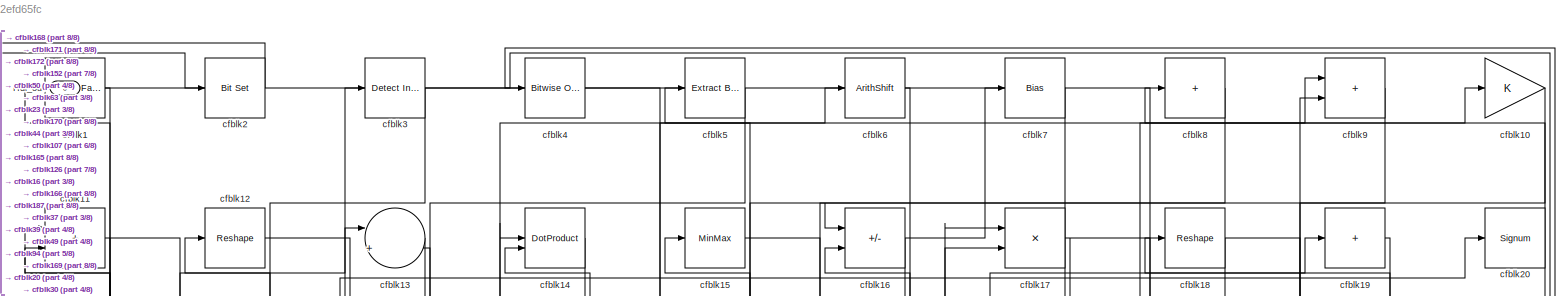
[diagram: root canvas - part 1/8, full width, top band]
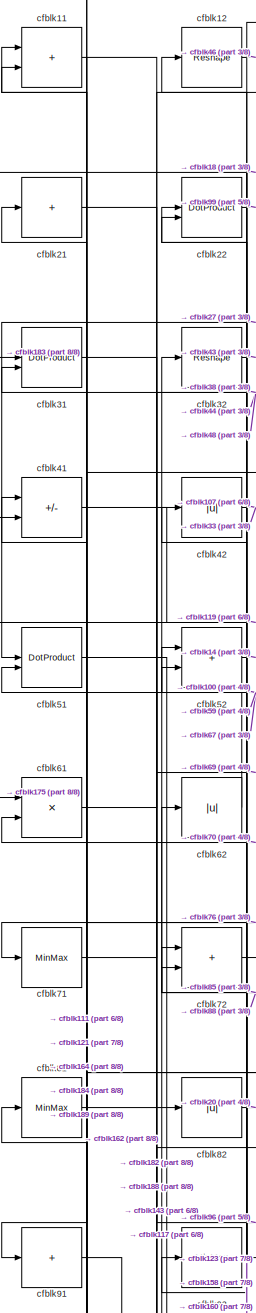
[diagram: root canvas - part 2/8, top left region]
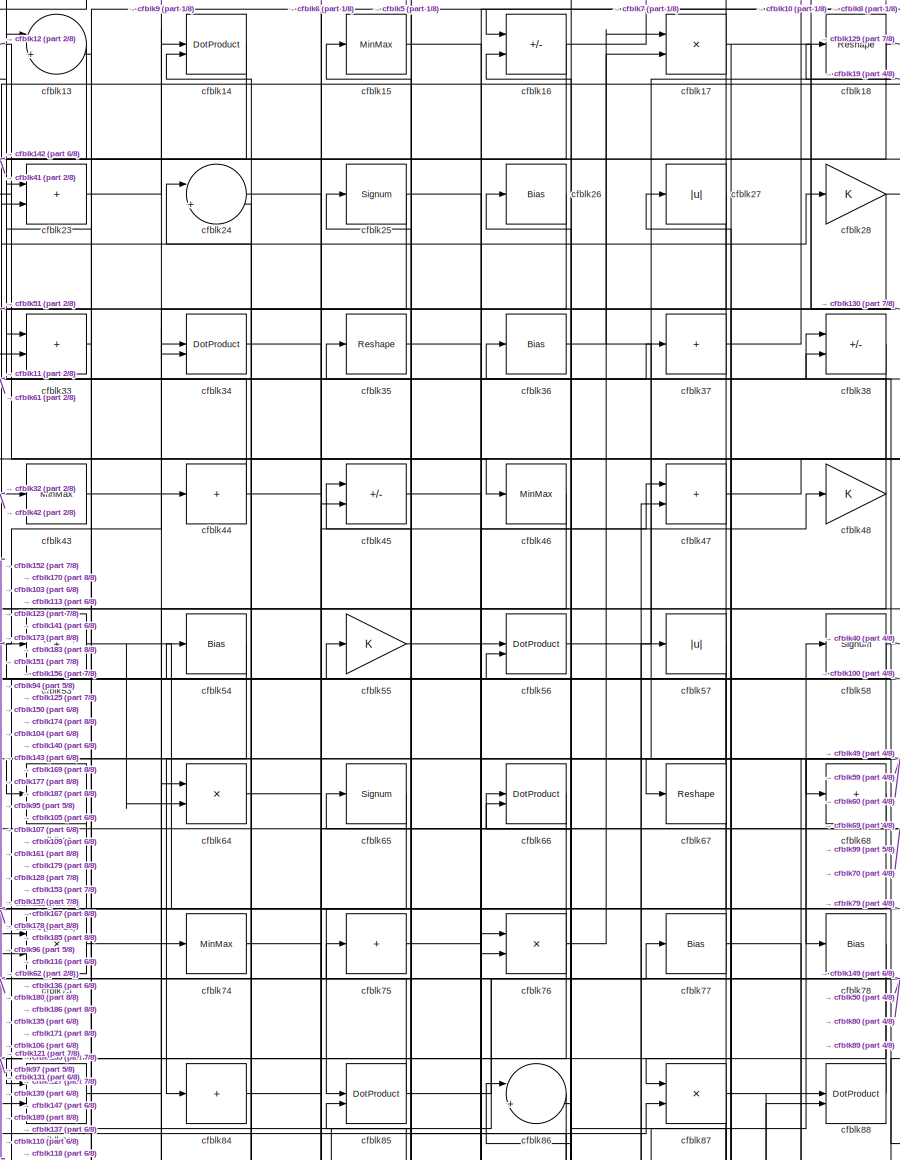
[diagram: root canvas - part 3/8, top center region]
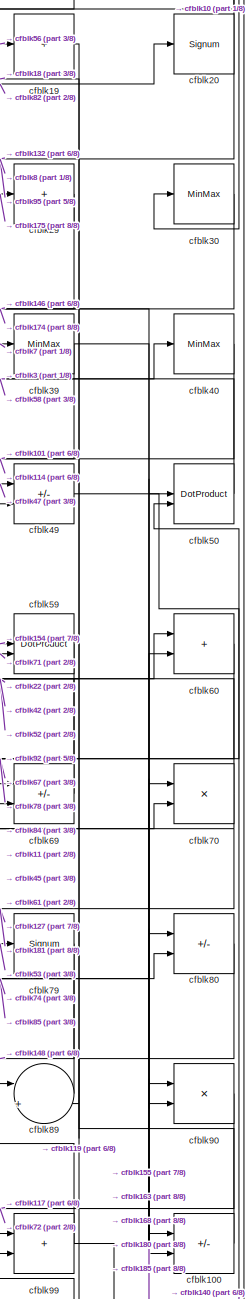
[diagram: root canvas - part 4/8, top right region]
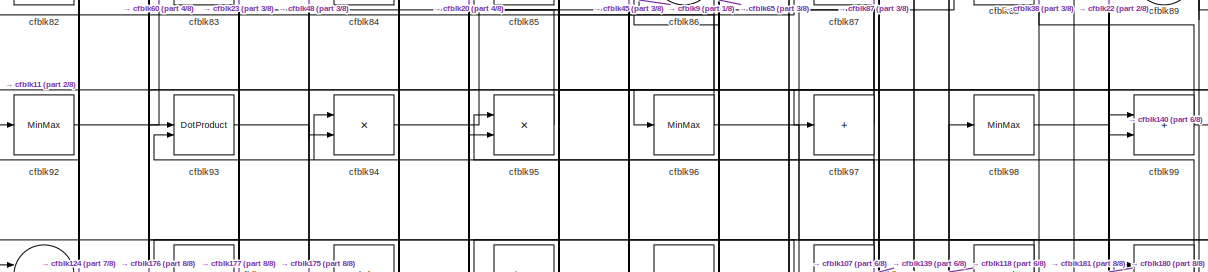
[diagram: root canvas - part 5/8, full width, middle band]
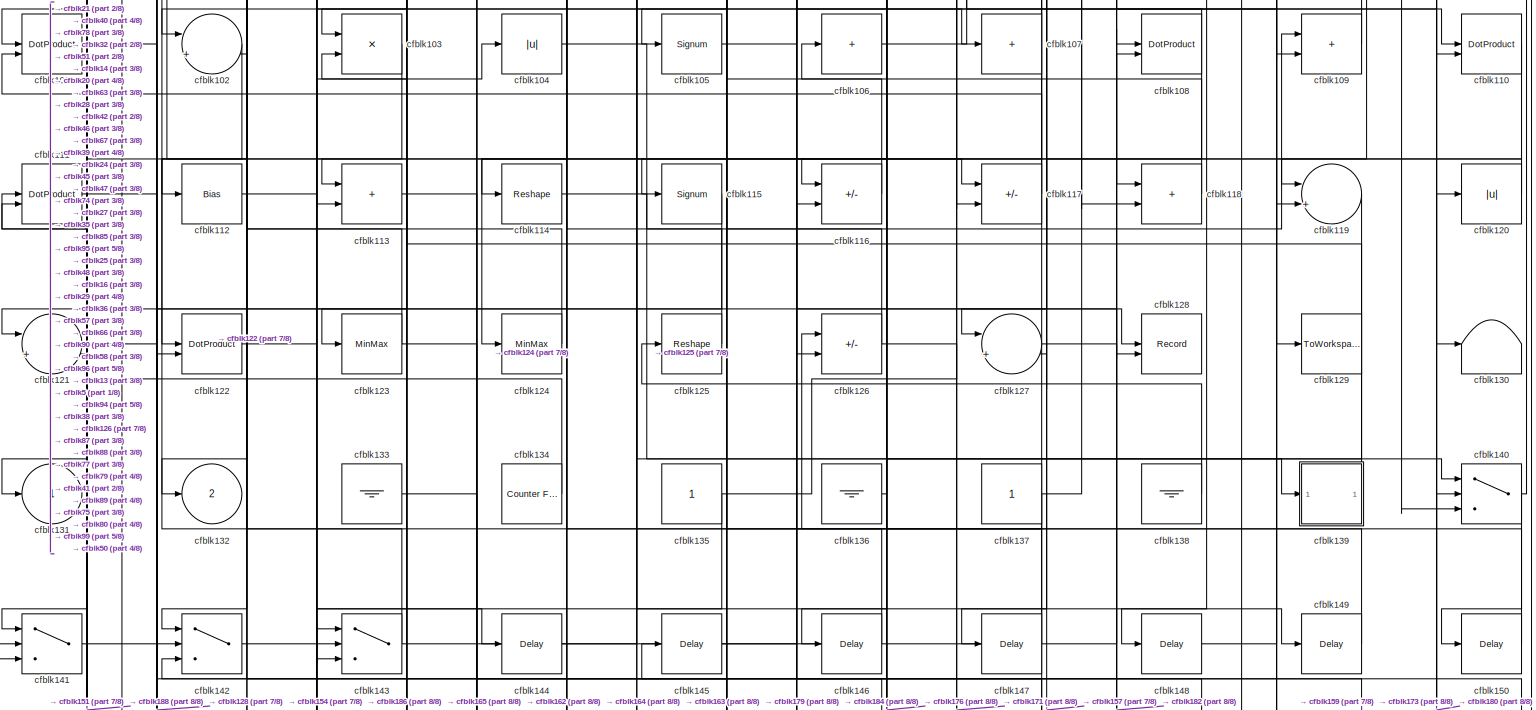
[diagram: root canvas - part 6/8, full width, middle band]
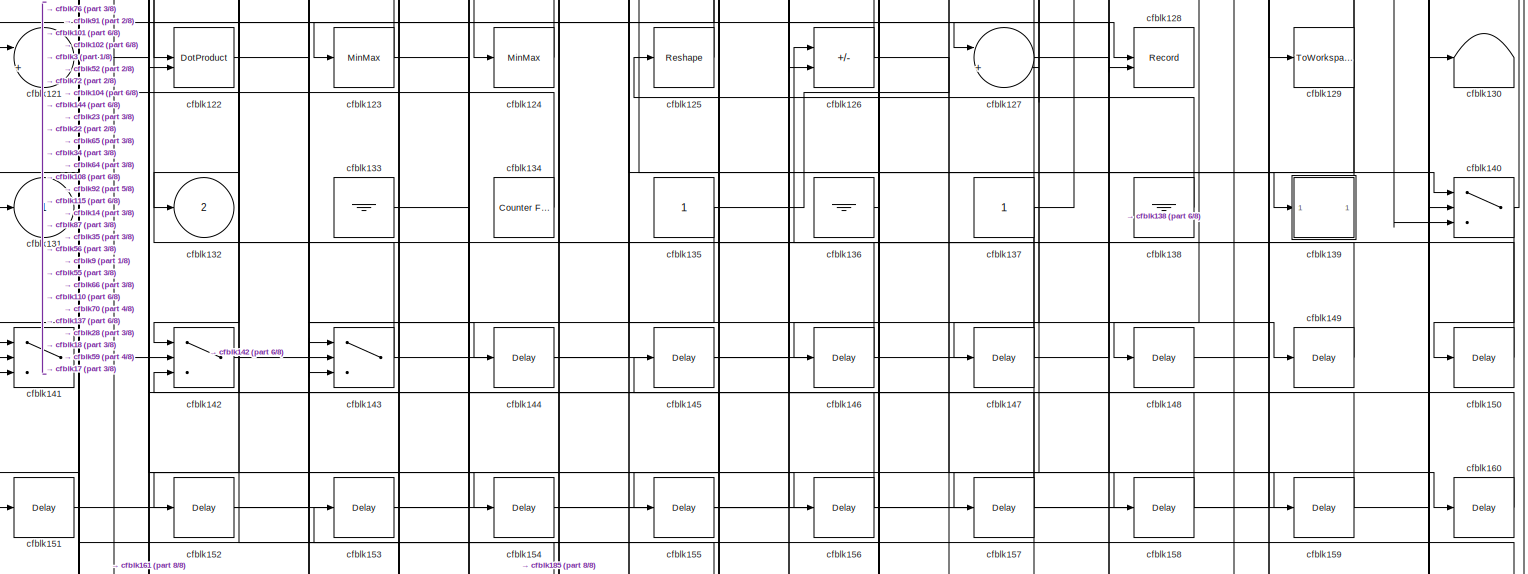
[diagram: root canvas - part 7/8, full width, bottom band]
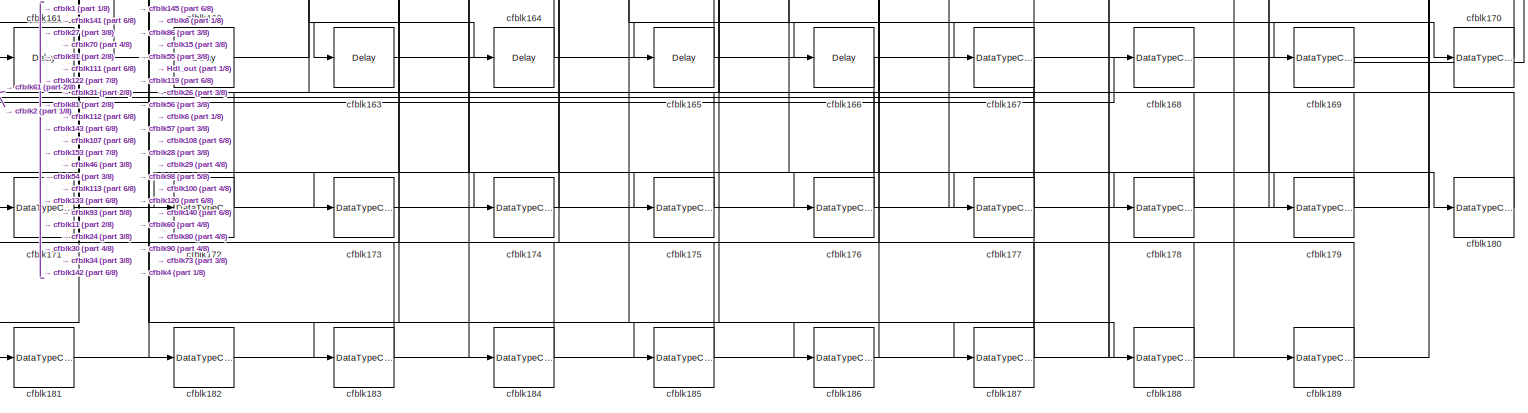
[diagram: root canvas - part 8/8, full width, bottom band]
MODEL slx_816c2efd65fc
KIND model
CONFIG AbsTol = auto
CONFIG EnableMultiTasking = off
CONFIG FixedStep = auto
CONFIG MaxStep = auto
CONFIG MinStep = auto
CONFIG RelTol = 1e-3
CONFIG SampleTimeConstraint = Unconstrained
CONFIG SolverName = VariableStepAuto
CONFIG StartTime = 0.0
CONFIG StopTime = 10.0
BLOCK [Outport] Hdl_out
  OutDataTypeStr = uint8
  Port = 3
BLOCK [Reference] cfblk1  REF=hdlsllib/Logic and Bit
Operations/Detect Fall
Negative
  SourceBlock = hdlsllib/Logic and Bit\nOperations/Detect Fall\nNegative
  SourceType = Detect Fall Negative
BLOCK [Gain] cfblk10
  OutDataTypeStr = uint8
BLOCK [Sum] cfblk100
  IconShape = rectangular
  Inputs = +-
  OutDataTypeStr = uint8
BLOCK [DotProduct] cfblk101
  OutDataTypeStr = uint8
BLOCK [Sum] cfblk102
  Inputs = |++
  OutDataTypeStr = uint8
BLOCK [Product] cfblk103
  Inputs = */
  OutDataTypeStr = uint8
  RndMeth = Zero
  SaturateOnIntegerOverflow = on
BLOCK [Abs] cfblk104
  OutDataTypeStr = uint8
  SaturateOnIntegerOverflow = off
BLOCK [Signum] cfblk105
BLOCK [Sum] cfblk106
  IconShape = rectangular
  Inputs = +
  OutDataTypeStr = uint8
BLOCK [Sum] cfblk107
  IconShape = rectangular
  Inputs = +
  OutDataTypeStr = uint8
BLOCK [DotProduct] cfblk108
  OutDataTypeStr = uint8
BLOCK [Sum] cfblk109
  IconShape = rectangular
  OutDataTypeStr = uint8
BLOCK [Sum] cfblk11
  IconShape = rectangular
  OutDataTypeStr = uint8
BLOCK [DotProduct] cfblk110
  OutDataTypeStr = uint8
BLOCK [DotProduct] cfblk111
  OutDataTypeStr = uint8
BLOCK [Bias] cfblk112
  Bias = 0.0
  SaturateOnIntegerOverflow = off
BLOCK [Sum] cfblk113
  IconShape = rectangular
  OutDataTypeStr = uint8
BLOCK [Reshape] cfblk114
BLOCK [Signum] cfblk115
BLOCK [Sum] cfblk116
  IconShape = rectangular
  Inputs = +-
  OutDataTypeStr = uint8
BLOCK [Sum] cfblk117
  IconShape = rectangular
  Inputs = +-
  OutDataTypeStr = uint8
BLOCK [Sum] cfblk118
  IconShape = rectangular
  OutDataTypeStr = uint8
BLOCK [Sum] cfblk119
  Inputs = |++
  OutDataTypeStr = uint8
BLOCK [Reshape] cfblk12
BLOCK [Abs] cfblk120
  OutDataTypeStr = uint8
  SaturateOnIntegerOverflow = off
BLOCK [Sum] cfblk121
  Inputs = |++
  OutDataTypeStr = uint8
BLOCK [DotProduct] cfblk122
  OutDataTypeStr = uint8
BLOCK [MinMax] cfblk123
  OutDataTypeStr = uint8
BLOCK [MinMax] cfblk124
  OutDataTypeStr = uint8
BLOCK [Reshape] cfblk125
BLOCK [Sum] cfblk126
  IconShape = rectangular
  Inputs = +-
  OutDataTypeStr = uint8
BLOCK [Sum] cfblk127
  Inputs = |++
  OutDataTypeStr = uint8
BLOCK [Record] cfblk128
  CompatibilityTag = XY
  FileSettingsInternal = {"entries":[{"content":{"excelSettings":{"content":{},"type":"Streamout.ExcelSettings"}},"type":"Streamout.FileSettingStorage","uuid":""}],"packageUris":["http:\/\/schema.mathworks.com\/mf0\/streamout_blocks\/R2020a"],"version":"1.0"}
  Layout = [1 1]
  SignalsInternal = {"entries":[{"content":{"signals":[{"content":{"blockPath":[],"dimensions":[1],"domain":"","lineColor":"#a2142f","plots":[1],"port":1,"signalID":57672,"signalName":"cfblk35"},"type":"RecordBlkView.Signal","uuid":""},{"content":{"blockPath":[],"dimensions":[1],"domain":"","lineColor":"#139fff","plots":[1],"port":2,"signalID":57675,"signalName":"cfblk101"},"type":"RecordBlkView.Signal","uuid":""}]},...<+143ch>
  VisualizationBindings = {"xyplotplugin":{"info":[{"series":[{"bindingParametersList":[{"parameter":"X-Axis","signalID":57672,"signalName":"cfblk35"},{"parameter":"Y-Axis","signalID":57675,"signalName":"cfblk101"}],"seriesID":48372}],"subplotID":1}]}}
  st = -1
BLOCK [ToWorkspace] cfblk129
  MaxDataPoints = inf
  SampleTime = -1
  SaveFormat = Timeseries
  VariableName = simout
BLOCK [Sum] cfblk13
  Inputs = |++
  OutDataTypeStr = uint8
BLOCK [Terminator] cfblk130
BLOCK [Outport] cfblk131
  OutDataTypeStr = uint8
  VectorParamsAs1DForOutWhenUnconnected = off
BLOCK [Outport] cfblk132
  OutDataTypeStr = uint8
  Port = 2
  VectorParamsAs1DForOutWhenUnconnected = off
BLOCK [Ground] cfblk133
BLOCK [Reference] cfblk134  REF=hdlsllib/Sources/Counter
Free-Running
  SourceBlock = hdlsllib/Sources/Counter\nFree-Running
  SourceType = Counter Free-Running
BLOCK [Constant] cfblk135
  OutDataTypeStr = uint8
  SampleTime = -1
BLOCK [Ground] cfblk136
BLOCK [Constant] cfblk137
  OutDataTypeStr = uint8
  SampleTime = -1
BLOCK [Ground] cfblk138
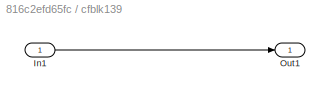
BLOCK [SubSystem] cfblk139
  LibrarySourceBlock = hdlsllib/Ports &\nSubsystems/Subsystem
BLOCK [Inport] cfblk139/In1
BLOCK [Outport] cfblk139/Out1
BLOCK [DotProduct] cfblk14
  OutDataTypeStr = uint8
BLOCK [Switch] cfblk140
  InputSameDT = off
  OutDataTypeStr = uint8
  SaturateOnIntegerOverflow = off
BLOCK [Switch] cfblk141
  InputSameDT = off
  OutDataTypeStr = uint8
  SaturateOnIntegerOverflow = off
BLOCK [Switch] cfblk142
  InputSameDT = off
  OutDataTypeStr = uint8
  SaturateOnIntegerOverflow = off
BLOCK [Switch] cfblk143
  InputSameDT = off
  OutDataTypeStr = uint8
  SaturateOnIntegerOverflow = off
BLOCK [Delay] cfblk144
  InputPortMap = u0
  SampleTime = 1
BLOCK [Delay] cfblk145
  InputPortMap = u0
  SampleTime = 1
BLOCK [Delay] cfblk146
  InputPortMap = u0
  SampleTime = 1
BLOCK [Delay] cfblk147
  InputPortMap = u0
  SampleTime = 1
BLOCK [Delay] cfblk148
  InputPortMap = u0
  SampleTime = 1
BLOCK [Delay] cfblk149
  InputPortMap = u0
  SampleTime = 1
BLOCK [MinMax] cfblk15
  OutDataTypeStr = uint8
BLOCK [Delay] cfblk150
  InputPortMap = u0
  SampleTime = 1
BLOCK [Delay] cfblk151
  InputPortMap = u0
  SampleTime = 1
BLOCK [Delay] cfblk152
  InputPortMap = u0
  SampleTime = 1
BLOCK [Delay] cfblk153
  InputPortMap = u0
  SampleTime = 1
BLOCK [Delay] cfblk154
  InputPortMap = u0
  SampleTime = 1
BLOCK [Delay] cfblk155
  InputPortMap = u0
  SampleTime = 1
BLOCK [Delay] cfblk156
  InputPortMap = u0
  SampleTime = 1
BLOCK [Delay] cfblk157
  InputPortMap = u0
  SampleTime = 1
BLOCK [Delay] cfblk158
  InputPortMap = u0
  SampleTime = 1
BLOCK [Delay] cfblk159
  InputPortMap = u0
  SampleTime = 1
BLOCK [Sum] cfblk16
  IconShape = rectangular
  Inputs = +-
  OutDataTypeStr = uint8
BLOCK [Delay] cfblk160
  InputPortMap = u0
  SampleTime = 1
BLOCK [Delay] cfblk161
  InputPortMap = u0
  SampleTime = 1
BLOCK [Delay] cfblk162
  InputPortMap = u0
  SampleTime = 1
BLOCK [Delay] cfblk163
  InputPortMap = u0
  SampleTime = 1
BLOCK [Delay] cfblk164
  InputPortMap = u0
  SampleTime = 1
BLOCK [Delay] cfblk165
  InputPortMap = u0
  SampleTime = 1
BLOCK [Delay] cfblk166
  InputPortMap = u0
  SampleTime = 1
BLOCK [DataTypeConversion] cfblk167
  OutDataTypeStr = uint8
  RndMeth = Floor
  SaturateOnIntegerOverflow = off
BLOCK [DataTypeConversion] cfblk168
  OutDataTypeStr = uint8
  RndMeth = Floor
  SaturateOnIntegerOverflow = off
BLOCK [DataTypeConversion] cfblk169
  OutDataTypeStr = uint8
  RndMeth = Floor
  SaturateOnIntegerOverflow = off
BLOCK [Product] cfblk17
  Inputs = */
  OutDataTypeStr = uint8
  RndMeth = Zero
  SaturateOnIntegerOverflow = on
BLOCK [DataTypeConversion] cfblk170
  OutDataTypeStr = uint8
  RndMeth = Floor
  SaturateOnIntegerOverflow = off
BLOCK [DataTypeConversion] cfblk171
  OutDataTypeStr = uint8
  RndMeth = Floor
  SaturateOnIntegerOverflow = off
BLOCK [DataTypeConversion] cfblk172
  OutDataTypeStr = uint8
  RndMeth = Floor
  SaturateOnIntegerOverflow = off
BLOCK [DataTypeConversion] cfblk173
  OutDataTypeStr = uint8
  RndMeth = Floor
  SaturateOnIntegerOverflow = off
BLOCK [DataTypeConversion] cfblk174
  OutDataTypeStr = uint8
  RndMeth = Floor
  SaturateOnIntegerOverflow = off
BLOCK [DataTypeConversion] cfblk175
  OutDataTypeStr = uint8
  RndMeth = Floor
  SaturateOnIntegerOverflow = off
BLOCK [DataTypeConversion] cfblk176
  OutDataTypeStr = uint8
  RndMeth = Floor
  SaturateOnIntegerOverflow = off
BLOCK [DataTypeConversion] cfblk177
  OutDataTypeStr = uint8
  RndMeth = Floor
  SaturateOnIntegerOverflow = off
BLOCK [DataTypeConversion] cfblk178
  OutDataTypeStr = uint8
  RndMeth = Floor
  SaturateOnIntegerOverflow = off
BLOCK [DataTypeConversion] cfblk179
  OutDataTypeStr = uint8
  RndMeth = Floor
  SaturateOnIntegerOverflow = off
BLOCK [Reshape] cfblk18
BLOCK [DataTypeConversion] cfblk180
  OutDataTypeStr = uint8
  RndMeth = Floor
  SaturateOnIntegerOverflow = off
BLOCK [DataTypeConversion] cfblk181
  OutDataTypeStr = uint8
  RndMeth = Floor
  SaturateOnIntegerOverflow = off
BLOCK [DataTypeConversion] cfblk182
  OutDataTypeStr = uint8
  RndMeth = Floor
  SaturateOnIntegerOverflow = off
BLOCK [DataTypeConversion] cfblk183
  OutDataTypeStr = uint8
  RndMeth = Floor
  SaturateOnIntegerOverflow = off
BLOCK [DataTypeConversion] cfblk184
  OutDataTypeStr = uint8
  RndMeth = Floor
  SaturateOnIntegerOverflow = off
BLOCK [DataTypeConversion] cfblk185
  OutDataTypeStr = uint8
  RndMeth = Floor
  SaturateOnIntegerOverflow = off
BLOCK [DataTypeConversion] cfblk186
  OutDataTypeStr = uint8
  RndMeth = Floor
  SaturateOnIntegerOverflow = off
BLOCK [DataTypeConversion] cfblk187
  OutDataTypeStr = uint8
  RndMeth = Floor
  SaturateOnIntegerOverflow = off
BLOCK [DataTypeConversion] cfblk188
  OutDataTypeStr = uint8
  RndMeth = Floor
  SaturateOnIntegerOverflow = off
BLOCK [DataTypeConversion] cfblk189
  OutDataTypeStr = uint8
  RndMeth = Floor
  SaturateOnIntegerOverflow = off
BLOCK [Sum] cfblk19
  IconShape = rectangular
  Inputs = +
  OutDataTypeStr = uint8
BLOCK [Reference] cfblk2  REF=simulink/Logic and Bit
Operations/Bit Set
  LibrarySourceBlock = hdlsllib/Logic and Bit\nOperations/Bit Set
  SourceBlock = simulink/Logic and Bit\nOperations/Bit Set
  SourceType = Bit Set
BLOCK [Signum] cfblk20
BLOCK [Sum] cfblk21
  IconShape = rectangular
  Inputs = +
  OutDataTypeStr = uint8
BLOCK [DotProduct] cfblk22
  OutDataTypeStr = uint8
BLOCK [Sum] cfblk23
  IconShape = rectangular
  OutDataTypeStr = uint8
BLOCK [Sum] cfblk24
  Inputs = |++
  OutDataTypeStr = uint8
BLOCK [Signum] cfblk25
BLOCK [Bias] cfblk26
  Bias = 0.0
  SaturateOnIntegerOverflow = off
BLOCK [Abs] cfblk27
  OutDataTypeStr = uint8
  SaturateOnIntegerOverflow = off
BLOCK [Gain] cfblk28
  OutDataTypeStr = uint8
BLOCK [Sum] cfblk29
  IconShape = rectangular
  Inputs = +
  OutDataTypeStr = uint8
BLOCK [Reference] cfblk3  REF=simulink/Logic and Bit
Operations/Detect
Increase
  LibrarySourceBlock = hdlsllib/Logic and Bit\nOperations/Detect\nIncrease
  SourceBlock = simulink/Logic and Bit\nOperations/Detect\nIncrease
  SourceType = Detect Increase
BLOCK [MinMax] cfblk30
  OutDataTypeStr = uint8
BLOCK [DotProduct] cfblk31
  OutDataTypeStr = uint8
BLOCK [Reshape] cfblk32
BLOCK [Sum] cfblk33
  IconShape = rectangular
  OutDataTypeStr = uint8
BLOCK [DotProduct] cfblk34
  OutDataTypeStr = uint8
BLOCK [Reshape] cfblk35
BLOCK [Bias] cfblk36
  Bias = 0.0
  SaturateOnIntegerOverflow = off
BLOCK [Sum] cfblk37
  IconShape = rectangular
  Inputs = +
  OutDataTypeStr = uint8
BLOCK [Sum] cfblk38
  IconShape = rectangular
  Inputs = +-
  OutDataTypeStr = uint8
BLOCK [MinMax] cfblk39
  OutDataTypeStr = uint8
BLOCK [Reference] cfblk4  REF=simulink/Logic and Bit
Operations/Bitwise
Operator
  LibrarySourceBlock = hdlsllib/Logic and Bit\nOperations/Bitwise\nOperator
  SourceBlock = simulink/Logic and Bit\nOperations/Bitwise\nOperator
  SourceType = Bitwise Operator
BLOCK [MinMax] cfblk40
  OutDataTypeStr = uint8
BLOCK [Sum] cfblk41
  IconShape = rectangular
  Inputs = +-
  OutDataTypeStr = uint8
BLOCK [Abs] cfblk42
  OutDataTypeStr = uint8
  SaturateOnIntegerOverflow = off
BLOCK [MinMax] cfblk43
  OutDataTypeStr = uint8
BLOCK [Sum] cfblk44
  IconShape = rectangular
  Inputs = +
  OutDataTypeStr = uint8
BLOCK [Sum] cfblk45
  IconShape = rectangular
  Inputs = +-
  OutDataTypeStr = uint8
BLOCK [MinMax] cfblk46
  OutDataTypeStr = uint8
BLOCK [Sum] cfblk47
  IconShape = rectangular
  OutDataTypeStr = uint8
BLOCK [Gain] cfblk48
  OutDataTypeStr = uint8
BLOCK [Sum] cfblk49
  IconShape = rectangular
  Inputs = +-
  OutDataTypeStr = uint8
BLOCK [Reference] cfblk5  REF=simulink/Logic and Bit
Operations/Extract Bits
  LibrarySourceBlock = hdlsllib/Logic and Bit\nOperations/Extract Bits
  SourceBlock = simulink/Logic and Bit\nOperations/Extract Bits
  SourceType = Extract Bits
BLOCK [DotProduct] cfblk50
  OutDataTypeStr = uint8
BLOCK [DotProduct] cfblk51
  OutDataTypeStr = uint8
BLOCK [Sum] cfblk52
  IconShape = rectangular
  OutDataTypeStr = uint8
BLOCK [Sum] cfblk53
  IconShape = rectangular
  Inputs = +
  OutDataTypeStr = uint8
BLOCK [Bias] cfblk54
  Bias = 0.0
  SaturateOnIntegerOverflow = off
BLOCK [Gain] cfblk55
  OutDataTypeStr = uint8
BLOCK [DotProduct] cfblk56
  OutDataTypeStr = uint8
BLOCK [Abs] cfblk57
  OutDataTypeStr = uint8
  SaturateOnIntegerOverflow = off
BLOCK [Signum] cfblk58
BLOCK [DotProduct] cfblk59
  OutDataTypeStr = uint8
BLOCK [ArithShift] cfblk6
  BitShiftNumber = 8
  InputPortMap = u0
BLOCK [Sum] cfblk60
  IconShape = rectangular
  OutDataTypeStr = uint8
BLOCK [Product] cfblk61
  Inputs = */
  OutDataTypeStr = uint8
  RndMeth = Zero
  SaturateOnIntegerOverflow = on
BLOCK [Abs] cfblk62
  OutDataTypeStr = uint8
  SaturateOnIntegerOverflow = off
BLOCK [MinMax] cfblk63
  OutDataTypeStr = uint8
BLOCK [Product] cfblk64
  Inputs = */
  OutDataTypeStr = uint8
  RndMeth = Zero
  SaturateOnIntegerOverflow = on
BLOCK [Signum] cfblk65
BLOCK [DotProduct] cfblk66
  OutDataTypeStr = uint8
BLOCK [Reshape] cfblk67
BLOCK [Sum] cfblk68
  IconShape = rectangular
  Inputs = +
  OutDataTypeStr = uint8
BLOCK [Sum] cfblk69
  IconShape = rectangular
  Inputs = +-
  OutDataTypeStr = uint8
BLOCK [Bias] cfblk7
  Bias = 0.0
  SaturateOnIntegerOverflow = off
BLOCK [Product] cfblk70
  Inputs = */
  OutDataTypeStr = uint8
  RndMeth = Zero
  SaturateOnIntegerOverflow = on
BLOCK [MinMax] cfblk71
  OutDataTypeStr = uint8
BLOCK [Sum] cfblk72
  IconShape = rectangular
  OutDataTypeStr = uint8
BLOCK [Product] cfblk73
  Inputs = */
  OutDataTypeStr = uint8
  RndMeth = Zero
  SaturateOnIntegerOverflow = on
BLOCK [MinMax] cfblk74
  OutDataTypeStr = uint8
BLOCK [Sum] cfblk75
  IconShape = rectangular
  Inputs = +
  OutDataTypeStr = uint8
BLOCK [Product] cfblk76
  Inputs = */
  OutDataTypeStr = uint8
  RndMeth = Zero
  SaturateOnIntegerOverflow = on
BLOCK [Bias] cfblk77
  Bias = 0.0
  SaturateOnIntegerOverflow = off
BLOCK [Bias] cfblk78
  Bias = 0.0
  SaturateOnIntegerOverflow = off
BLOCK [Signum] cfblk79
BLOCK [Sum] cfblk8
  IconShape = rectangular
  Inputs = +
  OutDataTypeStr = uint8
BLOCK [Sum] cfblk80
  IconShape = rectangular
  Inputs = +-
  OutDataTypeStr = uint8
BLOCK [MinMax] cfblk81
  OutDataTypeStr = uint8
BLOCK [Abs] cfblk82
  OutDataTypeStr = uint8
  SaturateOnIntegerOverflow = off
BLOCK [Sum] cfblk83
  IconShape = rectangular
  OutDataTypeStr = uint8
BLOCK [Sum] cfblk84
  IconShape = rectangular
  Inputs = +
  OutDataTypeStr = uint8
BLOCK [DotProduct] cfblk85
  OutDataTypeStr = uint8
BLOCK [Sum] cfblk86
  Inputs = |++
  OutDataTypeStr = uint8
BLOCK [Product] cfblk87
  Inputs = */
  OutDataTypeStr = uint8
  RndMeth = Zero
  SaturateOnIntegerOverflow = on
BLOCK [DotProduct] cfblk88
  OutDataTypeStr = uint8
BLOCK [Sum] cfblk89
  Inputs = |++
  OutDataTypeStr = uint8
BLOCK [Sum] cfblk9
  IconShape = rectangular
  OutDataTypeStr = uint8
BLOCK [Product] cfblk90
  Inputs = */
  OutDataTypeStr = uint8
  RndMeth = Zero
  SaturateOnIntegerOverflow = on
BLOCK [Sum] cfblk91
  IconShape = rectangular
  Inputs = +
  OutDataTypeStr = uint8
BLOCK [MinMax] cfblk92
  OutDataTypeStr = uint8
BLOCK [DotProduct] cfblk93
  OutDataTypeStr = uint8
BLOCK [Product] cfblk94
  Inputs = */
  OutDataTypeStr = uint8
  RndMeth = Zero
  SaturateOnIntegerOverflow = on
BLOCK [Product] cfblk95
  Inputs = */
  OutDataTypeStr = uint8
  RndMeth = Zero
  SaturateOnIntegerOverflow = on
BLOCK [MinMax] cfblk96
  OutDataTypeStr = uint8
BLOCK [Sum] cfblk97
  IconShape = rectangular
  Inputs = +
  OutDataTypeStr = uint8
BLOCK [MinMax] cfblk98
  OutDataTypeStr = uint8
BLOCK [Sum] cfblk99
  IconShape = rectangular
  OutDataTypeStr = uint8
NET cfblk100:1 -> cfblk18:1, cfblk52:1
NET cfblk101:1 -> cfblk128:2, cfblk154:1
LINE cfblk102:1 -> cfblk122:1
LINE cfblk103:1 -> cfblk141:1
NET cfblk104:1 -> cfblk139:1, cfblk47:1
LINE cfblk105:1 -> cfblk48:1
LINE cfblk106:1 -> cfblk58:1
NET cfblk107:1 -> cfblk13:2, cfblk163:1, cfblk5:1, cfblk94:1
NET cfblk108:1 -> cfblk102:1, cfblk124:1
LINE cfblk109:1 -> cfblk75:1
LINE cfblk10:1 -> cfblk49:2
LINE cfblk110:1 -> cfblk157:1
NET cfblk111:1 -> cfblk186:1, cfblk21:1
NET cfblk112:1 -> cfblk164:1, cfblk28:1
LINE cfblk113:1 -> cfblk179:1
LINE cfblk114:1 -> cfblk109:1
LINE cfblk115:1 -> cfblk151:1
LINE cfblk116:1 -> cfblk106:1
LINE cfblk117:1 -> cfblk101:2
LINE cfblk118:1 -> cfblk35:1
LINE cfblk119:1 -> cfblk176:1
NET cfblk11:1 -> cfblk69:1, cfblk91:1, cfblk96:1
LINE cfblk120:1 -> cfblk115:1
NET cfblk121:1 -> cfblk158:1, cfblk87:2
NET cfblk122:1 -> cfblk104:1, cfblk144:1
NET cfblk123:1 -> cfblk156:1, cfblk22:1
LINE cfblk124:1 -> cfblk92:1
LINE cfblk125:1 -> cfblk14:2
NET cfblk126:1 -> cfblk160:1, cfblk55:1, cfblk66:1
LINE cfblk127:1 -> cfblk159:1
LINE cfblk12:1 -> cfblk46:1
LINE cfblk133:1 -> cfblk184:1
LINE cfblk134:1 -> cfblk111:1
NET cfblk135:1 -> cfblk143:3, cfblk47:2
NET cfblk136:1 -> cfblk16:2, cfblk36:1
NET cfblk137:1 -> cfblk126:1, cfblk88:2
LINE cfblk138:1 -> cfblk125:1
LINE cfblk139/In1:1 -> cfblk139/Out1:1
NET cfblk139:1 -> cfblk103:2, cfblk27:1, cfblk95:1
LINE cfblk13:1 -> cfblk73:2
NET cfblk140:1 -> cfblk150:1, cfblk50:2
LINE cfblk141:1 -> cfblk13:1
LINE cfblk142:1 -> cfblk143:2
NET cfblk143:1 -> cfblk32:1, cfblk45:2
LINE cfblk144:1 -> cfblk116:2
LINE cfblk145:1 -> cfblk108:1
LINE cfblk146:1 -> cfblk102:2
LINE cfblk147:1 -> cfblk85:2
LINE cfblk148:1 -> cfblk89:1
LINE cfblk149:1 -> cfblk66:2
LINE cfblk14:1 -> cfblk142:1
LINE cfblk150:1 -> cfblk24:1
LINE cfblk151:1 -> cfblk34:1
LINE cfblk152:1 -> cfblk23:2
LINE cfblk153:1 -> cfblk56:1
LINE cfblk154:1 -> cfblk59:1
LINE cfblk155:1 -> cfblk70:1
LINE cfblk156:1 -> cfblk64:1
LINE cfblk157:1 -> cfblk76:1
LINE cfblk158:1 -> cfblk52:2
LINE cfblk159:1 -> cfblk142:2
LINE cfblk15:1 -> cfblk178:1
LINE cfblk160:1 -> cfblk72:2
LINE cfblk161:1 -> cfblk122:2
LINE cfblk162:1 -> cfblk143:1
LINE cfblk163:1 -> cfblk100:1
LINE cfblk164:1 -> cfblk11:2
LINE cfblk165:1 -> cfblk142:3
LINE cfblk166:1 -> cfblk172:1
LINE cfblk167:1 -> cfblk2:1
LINE cfblk168:1 -> cfblk90:1
LINE cfblk169:1 -> cfblk4:1
NET cfblk16:1 -> cfblk33:1, cfblk7:1
LINE cfblk170:1 -> cfblk73:1
NET cfblk171:1 -> cfblk140:2, cfblk57:1
LINE cfblk172:1 -> cfblk1:1
LINE cfblk173:1 -> cfblk120:1
LINE cfblk174:1 -> cfblk54:1
NET cfblk175:1 -> cfblk29:1, cfblk61:1
LINE cfblk176:1 -> cfblk93:1
LINE cfblk177:1 -> cfblk93:2
LINE cfblk178:1 -> cfblk26:1
LINE cfblk179:1 -> cfblk15:1
NET cfblk17:1 -> cfblk130:1, cfblk87:1
NET cfblk180:1 -> cfblk145:1, cfblk56:2, cfblk80:1
LINE cfblk181:1 -> cfblk98:1
LINE cfblk182:1 -> cfblk108:2
LINE cfblk183:1 -> cfblk31:1
LINE cfblk184:1 -> cfblk31:2
NET cfblk185:1 -> cfblk153:1, cfblk24:2, cfblk60:2
LINE cfblk186:1 -> cfblk86:1
NET cfblk187:1 -> Hdl_out:1, cfblk86:2
NET cfblk188:1 -> cfblk111:2, cfblk141:2
LINE cfblk189:1 -> cfblk81:1
NET cfblk18:1 -> cfblk129:1, cfblk41:2
LINE cfblk19:1 -> cfblk89:2
LINE cfblk1:1 -> cfblk171:1
NET cfblk20:1 -> cfblk132:1, cfblk8:1, cfblk95:2
LINE cfblk21:1 -> cfblk82:1
LINE cfblk22:1 -> cfblk99:1
LINE cfblk23:1 -> cfblk9:1
LINE cfblk24:1 -> cfblk140:1
NET cfblk25:1 -> cfblk103:1, cfblk110:2, cfblk113:2
LINE cfblk26:1 -> cfblk34:2
NET cfblk27:1 -> cfblk105:1, cfblk161:1, cfblk51:1
NET cfblk28:1 -> cfblk127:1, cfblk189:1
LINE cfblk29:1 -> cfblk146:1
LINE cfblk2:1 -> cfblk168:1
LINE cfblk30:1 -> cfblk174:1
LINE cfblk31:1 -> cfblk182:1
LINE cfblk32:1 -> cfblk43:1
LINE cfblk33:1 -> cfblk83:1
NET cfblk34:1 -> cfblk169:1, cfblk177:1, cfblk187:1
LINE cfblk35:1 -> cfblk128:1
NET cfblk36:1 -> cfblk17:2, cfblk88:1
LINE cfblk37:1 -> cfblk10:1
LINE cfblk38:1 -> cfblk147:1
NET cfblk39:1 -> cfblk114:1, cfblk90:2
NET cfblk3:1 -> cfblk152:1, cfblk30:1
LINE cfblk40:1 -> cfblk101:1
LINE cfblk41:1 -> cfblk119:2
NET cfblk42:1 -> cfblk107:1, cfblk33:2
LINE cfblk43:1 -> cfblk44:1
NET cfblk44:1 -> cfblk12:1, cfblk6:1
NET cfblk45:1 -> cfblk25:1, cfblk69:2, cfblk99:2
NET cfblk46:1 -> cfblk141:3, cfblk183:1
LINE cfblk47:1 -> cfblk49:1
NET cfblk48:1 -> cfblk11:1, cfblk94:2
LINE cfblk49:1 -> cfblk84:1
LINE cfblk4:1 -> cfblk170:1
LINE cfblk50:1 -> cfblk3:1
LINE cfblk51:1 -> cfblk117:1
LINE cfblk52:1 -> cfblk14:1
NET cfblk53:1 -> cfblk64:2, cfblk79:1
LINE cfblk54:1 -> cfblk173:1
LINE cfblk55:1 -> cfblk167:1
LINE cfblk56:1 -> cfblk19:1
LINE cfblk57:1 -> cfblk116:1
NET cfblk58:1 -> cfblk40:1, cfblk68:1
LINE cfblk59:1 -> cfblk67:1
LINE cfblk5:1 -> cfblk63:1
LINE cfblk60:1 -> cfblk78:1
LINE cfblk61:1 -> cfblk38:1
LINE cfblk62:1 -> cfblk41:1
LINE cfblk63:1 -> cfblk112:1
LINE cfblk64:1 -> cfblk76:2
LINE cfblk65:1 -> cfblk123:1
LINE cfblk66:1 -> cfblk83:2
NET cfblk67:1 -> cfblk113:1, cfblk51:2
LINE cfblk68:1 -> cfblk85:1
LINE cfblk69:1 -> cfblk42:1
LINE cfblk6:1 -> cfblk166:1
NET cfblk70:1 -> cfblk127:2, cfblk181:1, cfblk22:2, cfblk61:2
LINE cfblk71:1 -> cfblk59:2
LINE cfblk72:1 -> cfblk100:2
LINE cfblk73:1 -> cfblk74:1
NET cfblk74:1 -> cfblk149:1, cfblk80:2
LINE cfblk75:1 -> cfblk37:1
NET cfblk76:1 -> cfblk121:2, cfblk17:1, cfblk71:1
LINE cfblk77:1 -> cfblk109:2
LINE cfblk78:1 -> cfblk131:1
LINE cfblk79:1 -> cfblk148:1
LINE cfblk7:1 -> cfblk39:1
LINE cfblk80:1 -> cfblk119:1
LINE cfblk81:1 -> cfblk188:1
LINE cfblk82:1 -> cfblk20:1
LINE cfblk83:1 -> cfblk77:1
LINE cfblk84:1 -> cfblk70:2
NET cfblk85:1 -> cfblk50:1, cfblk72:1
LINE cfblk86:1 -> cfblk185:1
NET cfblk87:1 -> cfblk110:1, cfblk118:2, cfblk155:1, cfblk97:1
LINE cfblk88:1 -> cfblk62:1
LINE cfblk89:1 -> cfblk53:1
NET cfblk8:1 -> cfblk165:1, cfblk16:1
LINE cfblk90:1 -> cfblk117:2
NET cfblk91:1 -> cfblk121:1, cfblk162:1
LINE cfblk92:1 -> cfblk60:1
LINE cfblk93:1 -> cfblk175:1
LINE cfblk94:1 -> cfblk9:2
LINE cfblk95:1 -> cfblk23:1
NET cfblk96:1 -> cfblk118:1, cfblk45:1
LINE cfblk97:1 -> cfblk65:1
LINE cfblk98:1 -> cfblk180:1
NET cfblk99:1 -> cfblk140:3, cfblk38:2
LINE cfblk9:1 -> cfblk126:2
note: NET lines group one-source signal fan-out (src -> all destinations, sorted); 1:1 wires keep LINE
